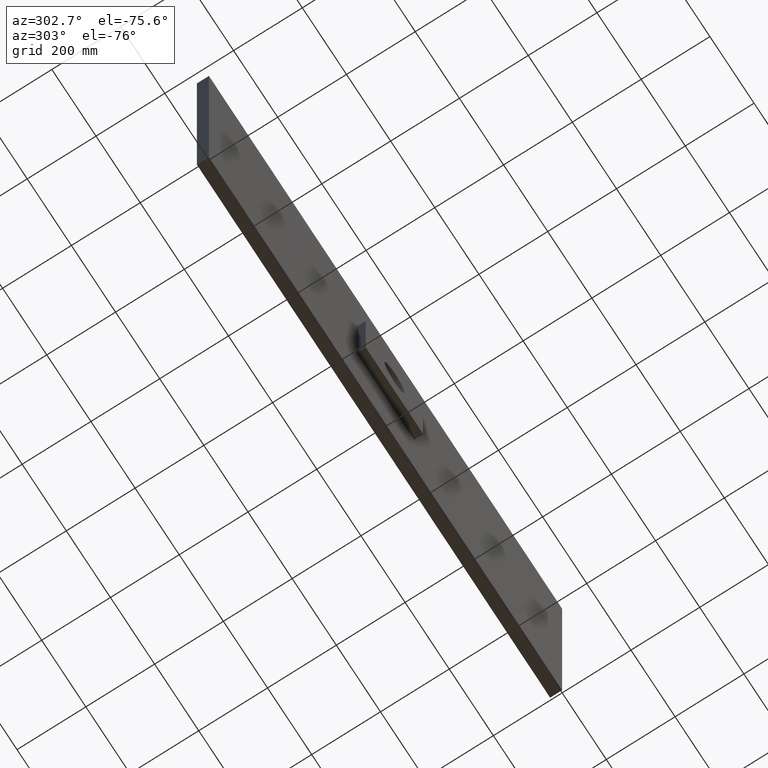
[diagram: clean part render]
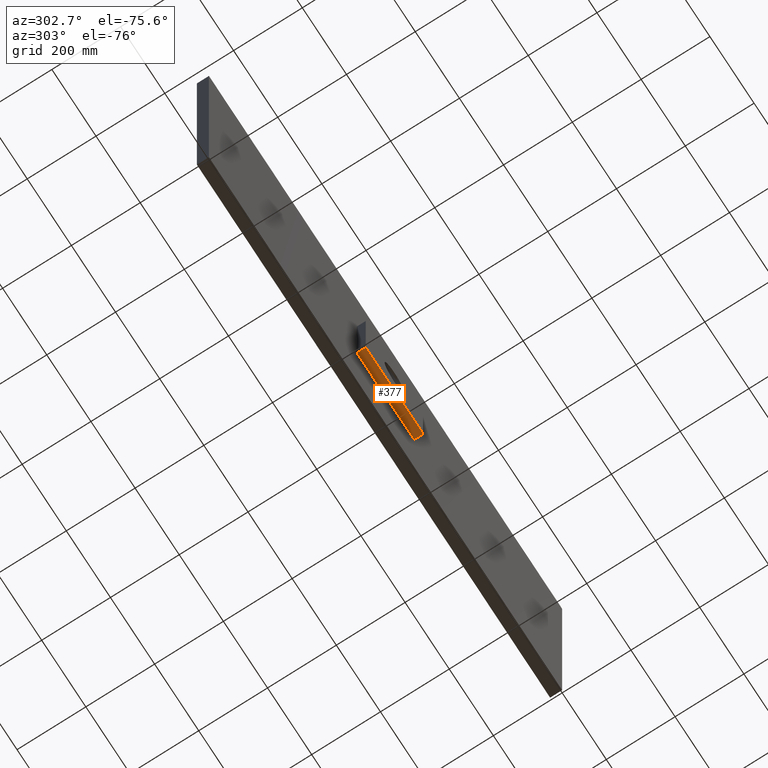
[diagram: same view with one face highlighted and labeled with its STEP entity id]
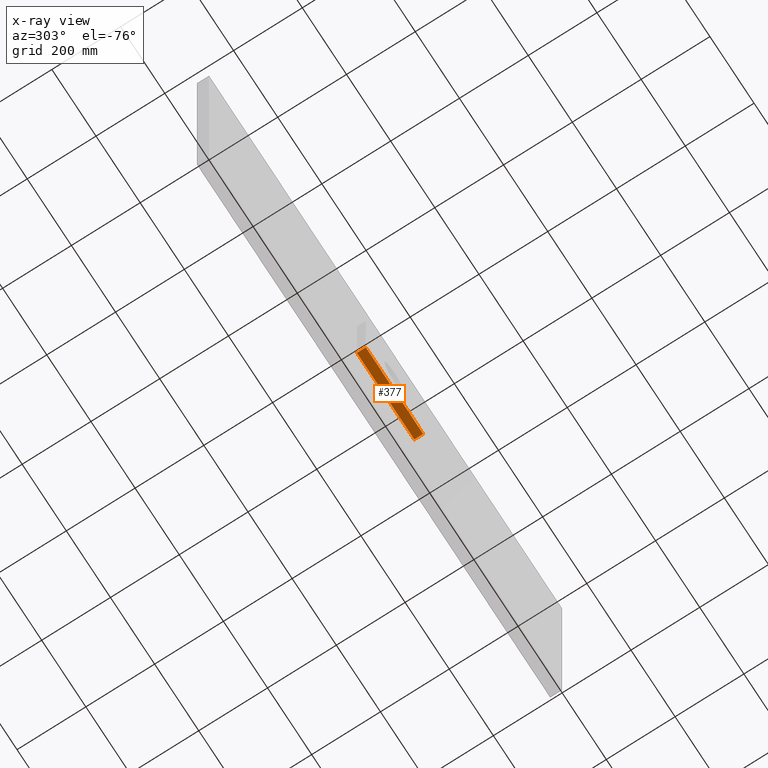
[diagram: x-ray of the same camera — body ghosted, the highlighted face saturated]
A machine part, auxiliary view. The second image highlights one B-rep face of the part: STEP entity #377.
The next image is the same camera in x-ray: the body ghosted, the highlighted face saturated — about 0% of this face is hidden behind the body in this view.
In plain terms, the highlighted planar face has unit normal (-0, 0, 1).
Its self-contained STEP definition (entity closure, byte-faithful):
#60 = VECTOR ( 'NONE', #524, 1000.000000000000000 ) ;
#61 = LINE ( 'NONE', #1538, #60 ) ;
#68 = CARTESIAN_POINT ( 'NONE',  ( 129.9999999999998000, 0.0000000000000000000, -129.9999999999999700 ) ) ;
#377 = ADVANCED_FACE ( 'NONE', ( #2826 ), #837, .F. ) ;
#429 = CARTESIAN_POINT ( 'NONE',  ( -130.0000000000001700, -0.0000000000000000000, -129.9999999999999700 ) ) ;
#463 = CARTESIAN_POINT ( 'NONE',  ( 129.9999999999998000, -26.00000000000000000, -129.9999999999999700 ) ) ;
#515 = VERTEX_POINT ( 'NONE', #1427 ) ;
#524 = DIRECTION ( 'NONE',  ( 1.000000000000000000, 0.0000000000000000000, 0.0000000000000000000 ) ) ;
#832 = CARTESIAN_POINT ( 'NONE',  ( -130.0000000000001700, -26.00000000000000000, -129.9999999999999700 ) ) ;
#837 = PLANE ( 'NONE',  #2508 ) ;
#1014 = EDGE_LOOP ( 'NONE', ( #3161, #3135, #3156, #3116 ) ) ;
#1039 = VECTOR ( 'NONE', #1741, 1000.000000000000000 ) ;
#1052 = LINE ( 'NONE', #463, #1039 ) ;
#1084 = VERTEX_POINT ( 'NONE', #2840 ) ;
#1303 = EDGE_CURVE ( 'NONE', #515, #2101, #1052, .T. ) ;
#1421 = VECTOR ( 'NONE', #3251, 1000.000000000000000 ) ;
#1427 = CARTESIAN_POINT ( 'NONE',  ( 129.9999999999998000, -26.00000000000000000, -129.9999999999999700 ) ) ;
#1538 = CARTESIAN_POINT ( 'NONE',  ( -130.0000000000001700, -26.00000000000000000, -129.9999999999999700 ) ) ;
#1560 = EDGE_CURVE ( 'NONE', #2689, #515, #61, .T. ) ;
#1629 = LINE ( 'NONE', #3269, #1421 ) ;
#1741 = DIRECTION ( 'NONE',  ( -0.0000000000000000000, 1.000000000000000000, -0.0000000000000000000 ) ) ;
#2101 = VERTEX_POINT ( 'NONE', #68 ) ;
#2263 = EDGE_CURVE ( 'NONE', #2689, #1084, #1629, .T. ) ;
#2508 = AXIS2_PLACEMENT_3D ( 'NONE', #3301, #2986, #3256 ) ;
#2689 = VERTEX_POINT ( 'NONE', #832 ) ;
#2772 = EDGE_CURVE ( 'NONE', #1084, #2101, #2831, .T. ) ;
#2804 = VECTOR ( 'NONE', #3304, 1000.000000000000000 ) ;
#2826 = FACE_OUTER_BOUND ( 'NONE', #1014, .T. ) ;
#2831 = LINE ( 'NONE', #429, #2804 ) ;
#2840 = CARTESIAN_POINT ( 'NONE',  ( -130.0000000000001700, -0.0000000000000000000, -129.9999999999999700 ) ) ;
#2986 = DIRECTION ( 'NONE',  ( -0.0000000000000000000, 0.0000000000000000000, 1.000000000000000000 ) ) ;
#3116 = ORIENTED_EDGE ( 'NONE', *, *, #2263, .T. ) ;
#3135 = ORIENTED_EDGE ( 'NONE', *, *, #1303, .F. ) ;
#3156 = ORIENTED_EDGE ( 'NONE', *, *, #1560, .F. ) ;
#3161 = ORIENTED_EDGE ( 'NONE', *, *, #2772, .T. ) ;
#3251 = DIRECTION ( 'NONE',  ( -0.0000000000000000000, 1.000000000000000000, -0.0000000000000000000 ) ) ;
#3256 = DIRECTION ( 'NONE',  ( 1.000000000000000000, 0.0000000000000000000, 0.0000000000000000000 ) ) ;
#3269 = CARTESIAN_POINT ( 'NONE',  ( -130.0000000000001700, -26.00000000000000000, -129.9999999999999700 ) ) ;
#3301 = CARTESIAN_POINT ( 'NONE',  ( -130.0000000000001700, -26.00000000000000000, -129.9999999999999700 ) ) ;
#3304 = DIRECTION ( 'NONE',  ( 1.000000000000000000, 0.0000000000000000000, 0.0000000000000000000 ) ) ;